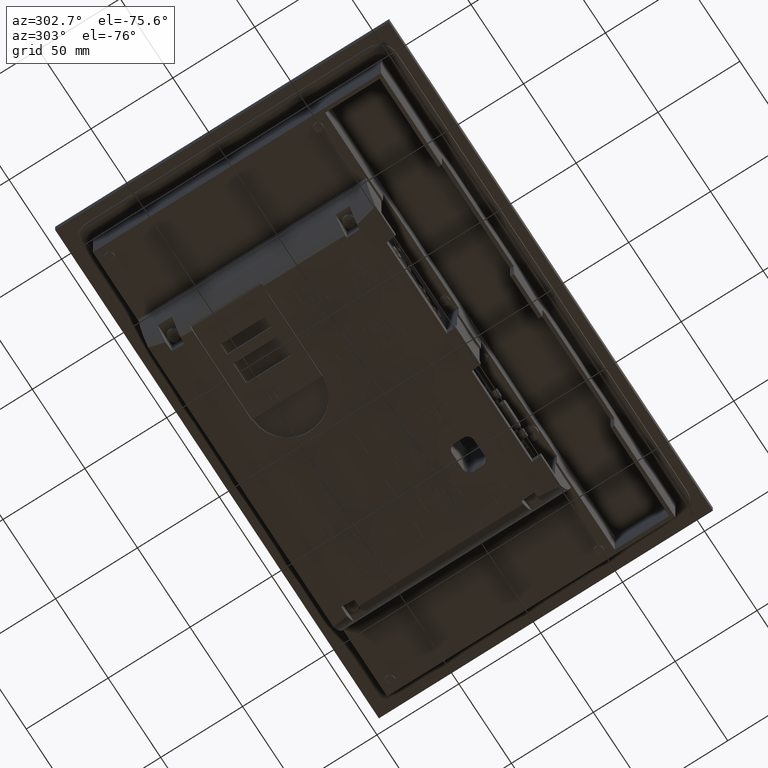
[diagram: clean part render]
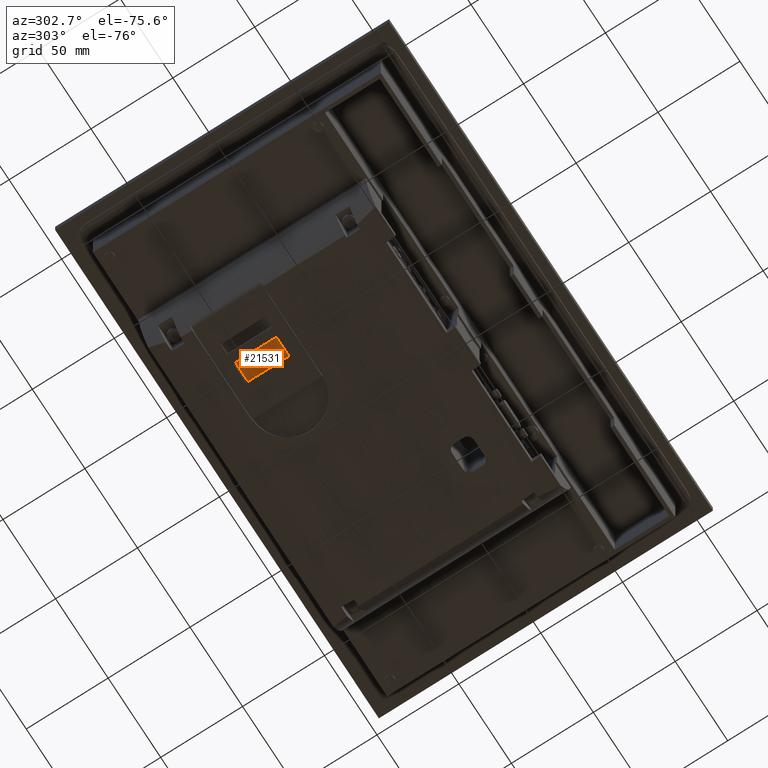
[diagram: same view with one face highlighted and labeled with its STEP entity id]
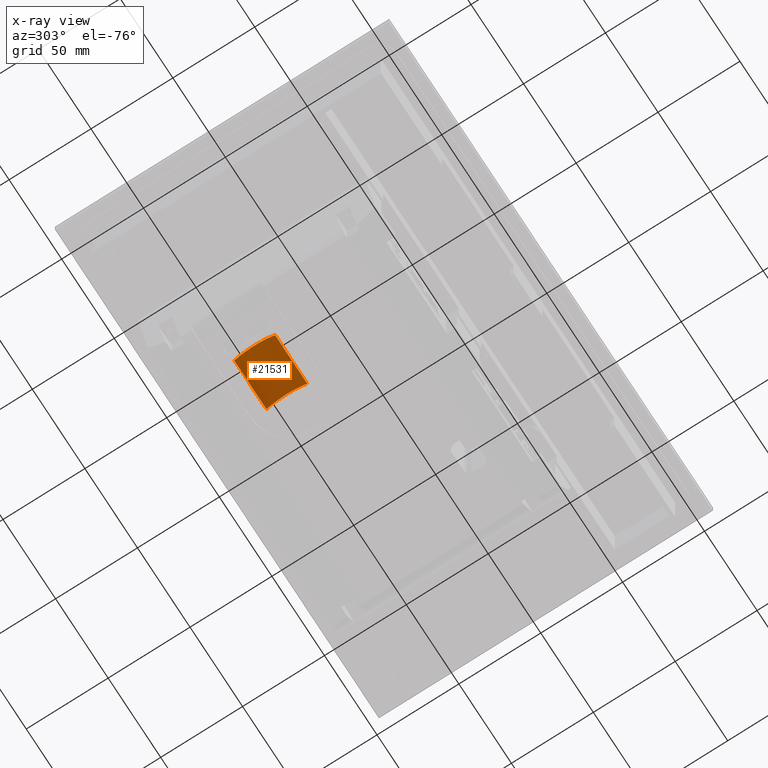
[diagram: x-ray of the same camera — body ghosted, the highlighted face saturated]
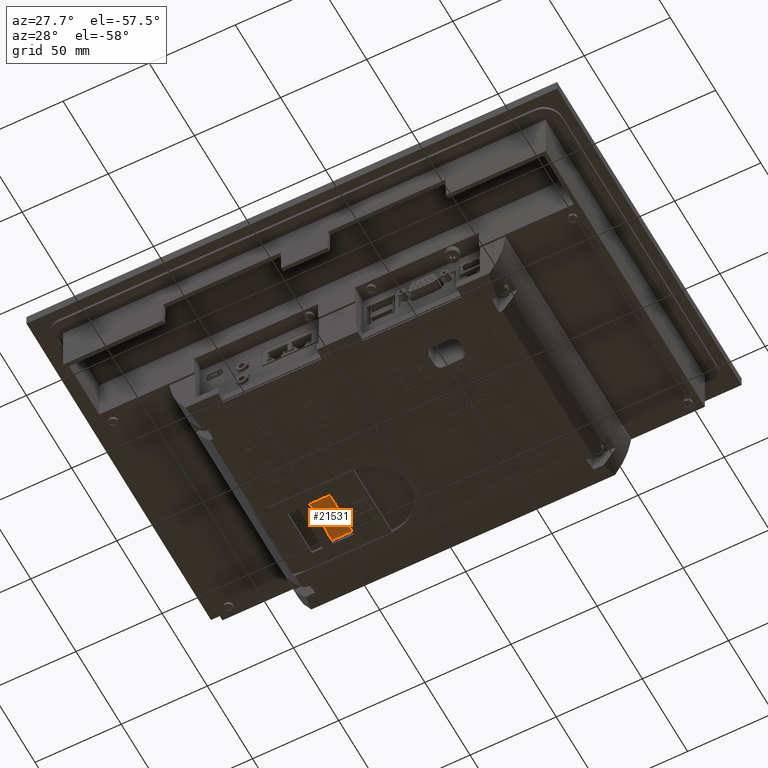
[diagram: same view with one face highlighted and labeled with its STEP entity id]
A machine part, auxiliary view. The second image highlights one B-rep face of the part: STEP entity #21531.
The next image is the same camera in x-ray: the body ghosted, the highlighted face saturated — about 0% of this face is hidden behind the body in this view.
A second angle (auxiliary view) of the same face is appended — the face is thin or edge-on in the first view.
In plain terms, the highlighted cylindrical surface (edge-blend (fillet) strip) has radius 18 mm, axis along (-1, 0, 0).
Its self-contained STEP definition (entity closure, byte-faithful):
#4700=LINE('',#83577,#11470);
#4702=LINE('',#83581,#11472);
#11470=VECTOR('',#67769,1.);
#11472=VECTOR('',#67771,1.);
#18169=FACE_OUTER_BOUND('',#29607,.T.);
#20997=CYLINDRICAL_SURFACE('',#63131,18.);
#21531=ADVANCED_FACE('',(#18169),#20997,.F.);
#29607=EDGE_LOOP('',(#34743,#34744,#34745,#34746));
#34743=ORIENTED_EDGE('',*,*,#55233,.T.);
#34744=ORIENTED_EDGE('',*,*,#55258,.T.);
#34745=ORIENTED_EDGE('',*,*,#55235,.T.);
#34746=ORIENTED_EDGE('',*,*,#55259,.T.);
#49550=VERTEX_POINT('',#83576);
#49551=VERTEX_POINT('',#83578);
#49552=VERTEX_POINT('',#83580);
#49553=VERTEX_POINT('',#83582);
#55233=EDGE_CURVE('',#49551,#49550,#4700,.T.);
#55235=EDGE_CURVE('',#49553,#49552,#4702,.T.);
#55258=EDGE_CURVE('',#49550,#49553,#62411,.T.);
#55259=EDGE_CURVE('',#49552,#49551,#62412,.T.);
#62411=CIRCLE('',#63129,18.);
#62412=CIRCLE('',#63130,18.);
#63129=AXIS2_PLACEMENT_3D('',#83626,#67805,#67806);
#63130=AXIS2_PLACEMENT_3D('',#83627,#67807,#67808);
#63131=AXIS2_PLACEMENT_3D('',#83628,#67809,#67810);
#67769=DIRECTION('',(-1.,0.,0.));
#67771=DIRECTION('',(1.,0.,0.));
#67805=DIRECTION('',(-1.,-1.61997523048418E-015,0.));
#67806=DIRECTION('',(1.54197642309049E-015,-1.,0.));
#67807=DIRECTION('',(1.,0.,0.));
#67808=DIRECTION('',(0.,-0.660565428342804,0.750768482874906));
#67809=DIRECTION('',(-1.,0.,0.));
#67810=DIRECTION('',(0.,0.,1.));
#83576=CARTESIAN_POINT('',(-58.9932385480492,28.6151311922733,-66.73357987516));
#83577=CARTESIAN_POINT('',(-28.36932723405,28.6151311922733,-66.73357987516));
#83578=CARTESIAN_POINT('',(-28.36932723405,28.6151311922733,-66.73357987516));
#83580=CARTESIAN_POINT('',(-28.36932723405,53.5848688077266,-66.73357987516));
#83581=CARTESIAN_POINT('',(-28.36932723405,53.5848688077266,-66.73357987516));
#83582=CARTESIAN_POINT('',(-58.9932385480492,53.5848688077266,-66.73357987516));
#83626=CARTESIAN_POINT('',(-58.9932385480492,41.1,-79.6999999999999));
#83627=CARTESIAN_POINT('',(-28.36932723405,41.1,-79.6999999999999));
#83628=CARTESIAN_POINT('',(-28.36932723405,41.1,-79.6999999999999));